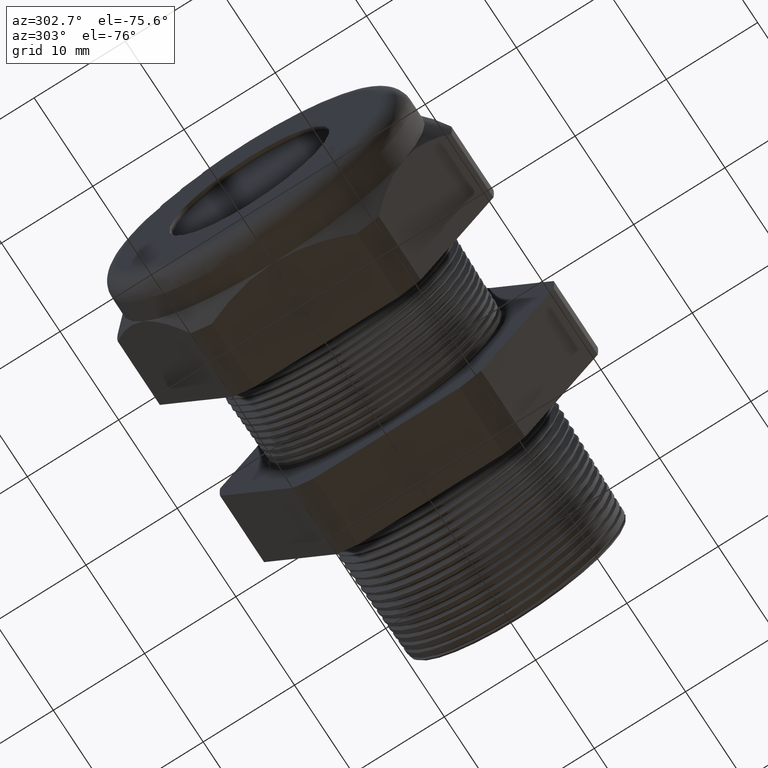
[diagram: clean part render]
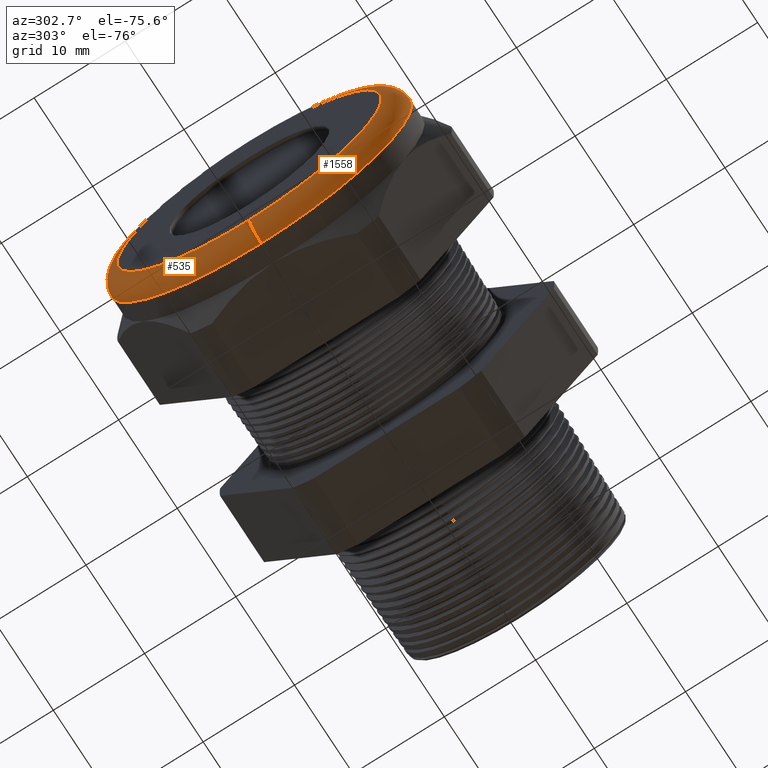
[diagram: same view with one multi-face feature highlighted, each face labeled with its STEP entity id]
A machine part, auxiliary view. The highlighted faces form ONE feature: a constant-radius fillet chain: 2 tangent blend faces with common blend radius 2.032 mm. The faces share edges in the B-rep.
Their STEP definitions:
[1] entity #1558 (Torus):
#530 = VERTEX_POINT ( 'NONE', #3038 ) ;
#549 = EDGE_CURVE ( 'NONE', #555, #550, #3123, .T. ) ;
#550 = VERTEX_POINT ( 'NONE', #3118 ) ;
#553 = VERTEX_POINT ( 'NONE', #3115 ) ;
#555 = VERTEX_POINT ( 'NONE', #3110 ) ;
#556 = EDGE_CURVE ( 'NONE', #530, #553, #3109, .T. ) ;
#1328 = EDGE_CURVE ( 'NONE', #555, #530, #4620, .T. ) ;
#1344 = EDGE_CURVE ( 'NONE', #553, #550, #4650, .T. ) ;
#1558 = ADVANCED_FACE ( 'NONE', ( #4922 ), #4983, .T. ) ;
#1559 = EDGE_LOOP ( 'NONE', ( #1560, #1561, #1563, #1564 ) ) ;
#1560 = ORIENTED_EDGE ( 'NONE', *, *, #556, .F. ) ;
#1561 = ORIENTED_EDGE ( 'NONE', *, *, #1328, .F. ) ;
#1563 = ORIENTED_EDGE ( 'NONE', *, *, #549, .T. ) ;
#1564 = ORIENTED_EDGE ( 'NONE', *, *, #1344, .F. ) ;
#3038 = CARTESIAN_POINT ( 'NONE',  ( -1.450000000000000400, 0.0000000000000000000, -0.6500000000000001300 ) ) ;
#3105 = DIRECTION ( 'NONE',  ( 0.0000000000000000000, -1.224646799147353900E-016, 1.000000000000000000 ) ) ;
#3106 = DIRECTION ( 'NONE',  ( 0.0000000000000000000, 1.000000000000000000, 1.224646799147353200E-016 ) ) ;
#3107 = CARTESIAN_POINT ( 'NONE',  ( -1.450000000000000400, 6.980486755139915100E-017, -0.5700000000000001700 ) ) ;
#3108 = AXIS2_PLACEMENT_3D ( 'NONE', #3107, #3106, #3105 ) ;
#3109 = CIRCLE ( 'NONE', #3108, 0.07999999999999996000 ) ;
#3110 = CARTESIAN_POINT ( 'NONE',  ( -1.450000000000000400, 7.960204194457797900E-017, 0.6500000000000001300 ) ) ;
#3115 = CARTESIAN_POINT ( 'NONE',  ( -1.530000000000000200, 7.470345474798856500E-017, -0.5700000000000001700 ) ) ;
#3118 = CARTESIAN_POINT ( 'NONE',  ( -1.530000000000000200, 0.0000000000000000000, 0.5700000000000001700 ) ) ;
#3119 = DIRECTION ( 'NONE',  ( 0.0000000000000000000, 0.0000000000000000000, -1.000000000000000000 ) ) ;
#3120 = DIRECTION ( 'NONE',  ( 0.0000000000000000000, -1.000000000000000000, 0.0000000000000000000 ) ) ;
#3121 = CARTESIAN_POINT ( 'NONE',  ( -1.450000000000000400, 0.0000000000000000000, 0.5700000000000001700 ) ) ;
#3122 = AXIS2_PLACEMENT_3D ( 'NONE', #3121, #3120, #3119 ) ;
#3123 = CIRCLE ( 'NONE', #3122, 0.07999999999999996000 ) ;
#4617 = DIRECTION ( 'NONE',  ( 0.0000000000000000000, 0.0000000000000000000, 1.000000000000000000 ) ) ;
#4618 = DIRECTION ( 'NONE',  ( 1.000000000000000000, 0.0000000000000000000, 0.0000000000000000000 ) ) ;
#4619 = AXIS2_PLACEMENT_3D ( 'NONE', #4626, #4618, #4617 ) ;
#4620 = CIRCLE ( 'NONE', #4619, 0.6500000000000001300 ) ;
#4626 = CARTESIAN_POINT ( 'NONE',  ( -1.450000000000000400, 0.0000000000000000000, 0.0000000000000000000 ) ) ;
#4646 = DIRECTION ( 'NONE',  ( 0.0000000000000000000, 0.0000000000000000000, 1.000000000000000000 ) ) ;
#4647 = DIRECTION ( 'NONE',  ( -1.000000000000000000, 0.0000000000000000000, 0.0000000000000000000 ) ) ;
#4648 = CARTESIAN_POINT ( 'NONE',  ( -1.530000000000000200, 0.0000000000000000000, 0.0000000000000000000 ) ) ;
#4649 = AXIS2_PLACEMENT_3D ( 'NONE', #4648, #4647, #4646 ) ;
#4650 = CIRCLE ( 'NONE', #4649, 0.5700000000000001700 ) ;
#4922 = FACE_OUTER_BOUND ( 'NONE', #1559, .T. ) ;
#4979 = DIRECTION ( 'NONE',  ( 0.0000000000000000000, 0.0000000000000000000, 1.000000000000000000 ) ) ;
#4980 = DIRECTION ( 'NONE',  ( -1.000000000000000000, 0.0000000000000000000, 0.0000000000000000000 ) ) ;
#4981 = CARTESIAN_POINT ( 'NONE',  ( -1.450000000000000400, 0.0000000000000000000, 0.0000000000000000000 ) ) ;
#4982 = AXIS2_PLACEMENT_3D ( 'NONE', #4981, #4980, #4979 ) ;
#4983 = TOROIDAL_SURFACE ( 'NONE', #4982, 0.5700000000000001700, 0.08000000000000000200 ) ;
[2] entity #535 (Torus):
#530 = VERTEX_POINT ( 'NONE', #3038 ) ;
#532 = EDGE_LOOP ( 'NONE', ( #554, #557, #547, #546 ) ) ;
#535 = ADVANCED_FACE ( 'NONE', ( #3091 ), #3090, .T. ) ;
#546 = ORIENTED_EDGE ( 'NONE', *, *, #549, .F. ) ;
#547 = ORIENTED_EDGE ( 'NONE', *, *, #548, .F. ) ;
#548 = EDGE_CURVE ( 'NONE', #550, #553, #3064, .T. ) ;
#549 = EDGE_CURVE ( 'NONE', #555, #550, #3123, .T. ) ;
#550 = VERTEX_POINT ( 'NONE', #3118 ) ;
#553 = VERTEX_POINT ( 'NONE', #3115 ) ;
#554 = ORIENTED_EDGE ( 'NONE', *, *, #558, .F. ) ;
#555 = VERTEX_POINT ( 'NONE', #3110 ) ;
#556 = EDGE_CURVE ( 'NONE', #530, #553, #3109, .T. ) ;
#557 = ORIENTED_EDGE ( 'NONE', *, *, #556, .T. ) ;
#558 = EDGE_CURVE ( 'NONE', #530, #555, #3104, .T. ) ;
#3038 = CARTESIAN_POINT ( 'NONE',  ( -1.450000000000000400, 0.0000000000000000000, -0.6500000000000001300 ) ) ;
#3064 = CIRCLE ( 'NONE', #3127, 0.5700000000000001700 ) ;
#3086 = DIRECTION ( 'NONE',  ( 0.0000000000000000000, 0.0000000000000000000, 1.000000000000000000 ) ) ;
#3087 = DIRECTION ( 'NONE',  ( -1.000000000000000000, 0.0000000000000000000, 0.0000000000000000000 ) ) ;
#3088 = CARTESIAN_POINT ( 'NONE',  ( -1.450000000000000400, 0.0000000000000000000, 0.0000000000000000000 ) ) ;
#3089 = AXIS2_PLACEMENT_3D ( 'NONE', #3088, #3087, #3086 ) ;
#3090 = TOROIDAL_SURFACE ( 'NONE', #3089, 0.5700000000000001700, 0.08000000000000000200 ) ;
#3091 = FACE_OUTER_BOUND ( 'NONE', #532, .T. ) ;
#3100 = DIRECTION ( 'NONE',  ( 0.0000000000000000000, 0.0000000000000000000, 1.000000000000000000 ) ) ;
#3101 = DIRECTION ( 'NONE',  ( 1.000000000000000000, 0.0000000000000000000, 0.0000000000000000000 ) ) ;
#3102 = CARTESIAN_POINT ( 'NONE',  ( -1.450000000000000400, 0.0000000000000000000, 0.0000000000000000000 ) ) ;
#3103 = AXIS2_PLACEMENT_3D ( 'NONE', #3102, #3101, #3100 ) ;
#3104 = CIRCLE ( 'NONE', #3103, 0.6500000000000001300 ) ;
#3105 = DIRECTION ( 'NONE',  ( 0.0000000000000000000, -1.224646799147353900E-016, 1.000000000000000000 ) ) ;
#3106 = DIRECTION ( 'NONE',  ( 0.0000000000000000000, 1.000000000000000000, 1.224646799147353200E-016 ) ) ;
#3107 = CARTESIAN_POINT ( 'NONE',  ( -1.450000000000000400, 6.980486755139915100E-017, -0.5700000000000001700 ) ) ;
#3108 = AXIS2_PLACEMENT_3D ( 'NONE', #3107, #3106, #3105 ) ;
#3109 = CIRCLE ( 'NONE', #3108, 0.07999999999999996000 ) ;
#3110 = CARTESIAN_POINT ( 'NONE',  ( -1.450000000000000400, 7.960204194457797900E-017, 0.6500000000000001300 ) ) ;
#3115 = CARTESIAN_POINT ( 'NONE',  ( -1.530000000000000200, 7.470345474798856500E-017, -0.5700000000000001700 ) ) ;
#3118 = CARTESIAN_POINT ( 'NONE',  ( -1.530000000000000200, 0.0000000000000000000, 0.5700000000000001700 ) ) ;
#3119 = DIRECTION ( 'NONE',  ( 0.0000000000000000000, 0.0000000000000000000, -1.000000000000000000 ) ) ;
#3120 = DIRECTION ( 'NONE',  ( 0.0000000000000000000, -1.000000000000000000, 0.0000000000000000000 ) ) ;
#3121 = CARTESIAN_POINT ( 'NONE',  ( -1.450000000000000400, 0.0000000000000000000, 0.5700000000000001700 ) ) ;
#3122 = AXIS2_PLACEMENT_3D ( 'NONE', #3121, #3120, #3119 ) ;
#3123 = CIRCLE ( 'NONE', #3122, 0.07999999999999996000 ) ;
#3124 = DIRECTION ( 'NONE',  ( 0.0000000000000000000, 0.0000000000000000000, 1.000000000000000000 ) ) ;
#3125 = DIRECTION ( 'NONE',  ( -1.000000000000000000, 0.0000000000000000000, 0.0000000000000000000 ) ) ;
#3126 = CARTESIAN_POINT ( 'NONE',  ( -1.530000000000000200, 0.0000000000000000000, 0.0000000000000000000 ) ) ;
#3127 = AXIS2_PLACEMENT_3D ( 'NONE', #3126, #3125, #3124 ) ;